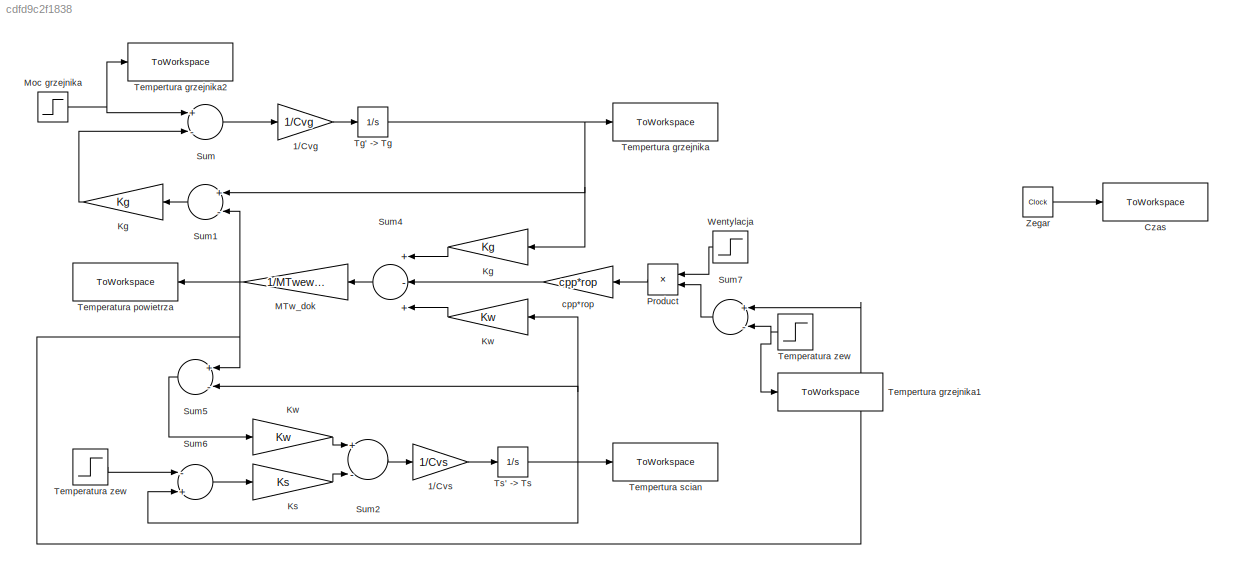
MODEL slx_cdfd9c2f1838
KIND model
CONFIG AbsTol = auto
CONFIG FixedStep = auto
CONFIG MaxStep = tmax
CONFIG MinStep = auto
CONFIG RelTol = 1e-3
CONFIG SampleTimeConstraint = Unconstrained
CONFIG Solver = ode45
CONFIG SolverMode = Auto
CONFIG SolverName = ode45
CONFIG StartTime = 0.0
CONFIG StopTime = czas_sym
BLOCK [Gain] 1//Cvg
  Gain = 1/Cvg
  OutDataTypeStr = Inherit: Inherit via internal rule
  ParamDataTypeStr = Inherit: Inherit via internal rule
  SaturateOnIntegerOverflow = off
BLOCK [Gain] 1//Cvs
  Gain = 1/Cvs
  OutDataTypeStr = Inherit: Inherit via internal rule
  ParamDataTypeStr = Inherit: Inherit via internal rule
  SaturateOnIntegerOverflow = off
BLOCK [ToWorkspace] Czas
  MaxDataPoints = inf
  Ports = [1]
  SampleTime = -1
  Save2DSignal = 2-D array (concatenate along first dimension)
  VariableName = t
BLOCK [Gain] Kg
  Gain = Kg
  OutDataTypeStr = Inherit: Inherit via internal rule
  ParamDataTypeStr = Inherit: Inherit via internal rule
  SaturateOnIntegerOverflow = off
BLOCK [Gain] Kg 
  Gain = Kg
  OutDataTypeStr = Inherit: Inherit via internal rule
  ParamDataTypeStr = Inherit: Inherit via internal rule
  SaturateOnIntegerOverflow = off
BLOCK [Gain] Ks
  Gain = Ks
  OutDataTypeStr = Inherit: Inherit via internal rule
  ParamDataTypeStr = Inherit: Inherit via internal rule
  SaturateOnIntegerOverflow = off
BLOCK [Gain] Kw
  Gain = Kw
  OutDataTypeStr = Inherit: Inherit via internal rule
  ParamDataTypeStr = Inherit: Inherit via internal rule
  SaturateOnIntegerOverflow = off
BLOCK [Gain] Kw 
  Gain = Kw
  OutDataTypeStr = Inherit: Inherit via internal rule
  ParamDataTypeStr = Inherit: Inherit via internal rule
  SaturateOnIntegerOverflow = off
BLOCK [Gain] MTw_dok
  Gain = 1/MTwew_dok
  OutDataTypeStr = Inherit: Inherit via internal rule
  ParamDataTypeStr = Inherit: Inherit via internal rule
  SaturateOnIntegerOverflow = off
BLOCK [Step] Moc grzejnika
  After = Qg0 + dQg
  Before = Qg0
  SampleTime = 0
  Time = t0
BLOCK [Product] Product
  InputSameDT = off
  OutDataTypeStr = Inherit: Inherit via internal rule
  Ports = [2, 1]
  RndMeth = Floor
  SaturateOnIntegerOverflow = off
BLOCK [Sum] Sum
  InputSameDT = off
  Inputs = +-
  OutDataTypeStr = Inherit: Inherit via internal rule
  Ports = [2, 1]
  SaturateOnIntegerOverflow = off
BLOCK [Sum] Sum1
  InputSameDT = off
  Inputs = +-
  OutDataTypeStr = Inherit: Inherit via internal rule
  Ports = [2, 1]
  SaturateOnIntegerOverflow = off
BLOCK [Sum] Sum2
  InputSameDT = off
  Inputs = +-
  OutDataTypeStr = Inherit: Inherit via internal rule
  Ports = [2, 1]
  SaturateOnIntegerOverflow = off
BLOCK [Sum] Sum4
  InputSameDT = off
  Inputs = +-+
  OutDataTypeStr = Inherit: Inherit via internal rule
  Ports = [3, 1]
  SaturateOnIntegerOverflow = off
BLOCK [Sum] Sum5
  InputSameDT = off
  Inputs = +-
  OutDataTypeStr = Inherit: Inherit via internal rule
  Ports = [2, 1]
  SaturateOnIntegerOverflow = off
BLOCK [Sum] Sum6
  InputSameDT = off
  Inputs = -+
  OutDataTypeStr = Inherit: Inherit via internal rule
  Ports = [2, 1]
  SaturateOnIntegerOverflow = off
BLOCK [Sum] Sum7
  InputSameDT = off
  Inputs = +-
  OutDataTypeStr = Inherit: Inherit via internal rule
  Ports = [2, 1]
  SaturateOnIntegerOverflow = off
BLOCK [ToWorkspace] Temperatura powietrza
  MaxDataPoints = inf
  Ports = [1]
  SampleTime = -1
  Save2DSignal = 2-D array (concatenate along first dimension)
  VariableName = Twew
BLOCK [Step] Temperatura zew
  After = Tzew0+ dTzew
  Before = Tzew0
  SampleTime = 0
  Time = t0
BLOCK [Step] Temperatura zew 
  After = Tzew0+ dTzew
  Before = Tzew0
  SampleTime = 0
  Time = t0
BLOCK [ToWorkspace] Tempertura grzejnika
  MaxDataPoints = inf
  Ports = [1]
  SampleTime = -1
  Save2DSignal = 2-D array (concatenate along first dimension)
  VariableName = Tg
BLOCK [ToWorkspace] Tempertura grzejnika1
  MaxDataPoints = inf
  Ports = [1]
  SampleTime = -1
  Save2DSignal = 2-D array (concatenate along first dimension)
  VariableName = x
BLOCK [ToWorkspace] Tempertura grzejnika2
  MaxDataPoints = inf
  Ports = [1]
  SampleTime = -1
  Save2DSignal = 2-D array (concatenate along first dimension)
  VariableName = xq
BLOCK [ToWorkspace] Tempertura scian
  MaxDataPoints = inf
  Ports = [1]
  SampleTime = -1
  Save2DSignal = 2-D array (concatenate along first dimension)
  VariableName = Ts
BLOCK [Integrator] Tg' -> Tg
  InitialCondition = Tg0
  Ports = [1, 1]
BLOCK [Integrator] Ts' -> Ts
  InitialCondition = Ts0
  Ports = [1, 1]
BLOCK [Step] Wentylacja
  After = Fp0+dFp
  Before = Fp0
  SampleTime = 0
  Time = t0
BLOCK [Clock] Zegar
BLOCK [Gain] cpp*rop
  Gain = cpp*rop
  OutDataTypeStr = Inherit: Inherit via internal rule
  ParamDataTypeStr = Inherit: Inherit via internal rule
  SaturateOnIntegerOverflow = off
LINE 1//Cvg:1 -> Tg' -> Tg:1
LINE 1//Cvs:1 -> Ts' -> Ts:1
LINE Kg :1 -> Sum4:1
LINE Kg:1 -> Sum:2
LINE Ks:1 -> Sum2:2
LINE Kw :1 -> Sum4:3
LINE Kw:1 -> Sum2:1
NET MTw_dok:1 -> Sum1:2, Sum5:1, Sum7:1, Temperatura powietrza:1
NET Moc grzejnika:1 -> Sum:1, Tempertura grzejnika2:1
LINE Product:1 -> cpp*rop:1
LINE Sum1:1 -> Kg:1
LINE Sum2:1 -> 1//Cvs:1
LINE Sum4:1 -> MTw_dok:1
LINE Sum5:1 -> Kw:1
LINE Sum6:1 -> Ks:1
LINE Sum7:1 -> Product:2
LINE Sum:1 -> 1//Cvg:1
LINE Temperatura zew :1 -> Sum6:1
NET Temperatura zew:1 -> Sum7:2, Tempertura grzejnika1:1
NET Tg' -> Tg:1 -> Kg :1, Sum1:1, Tempertura grzejnika:1
NET Ts' -> Ts:1 -> Kw :1, Sum5:2, Sum6:2, Tempertura scian:1
LINE Wentylacja:1 -> Product:1
LINE Zegar:1 -> Czas:1
LINE cpp*rop:1 -> Sum4:2
note: NET lines group one-source signal fan-out (src -> all destinations, sorted); 1:1 wires keep LINE
